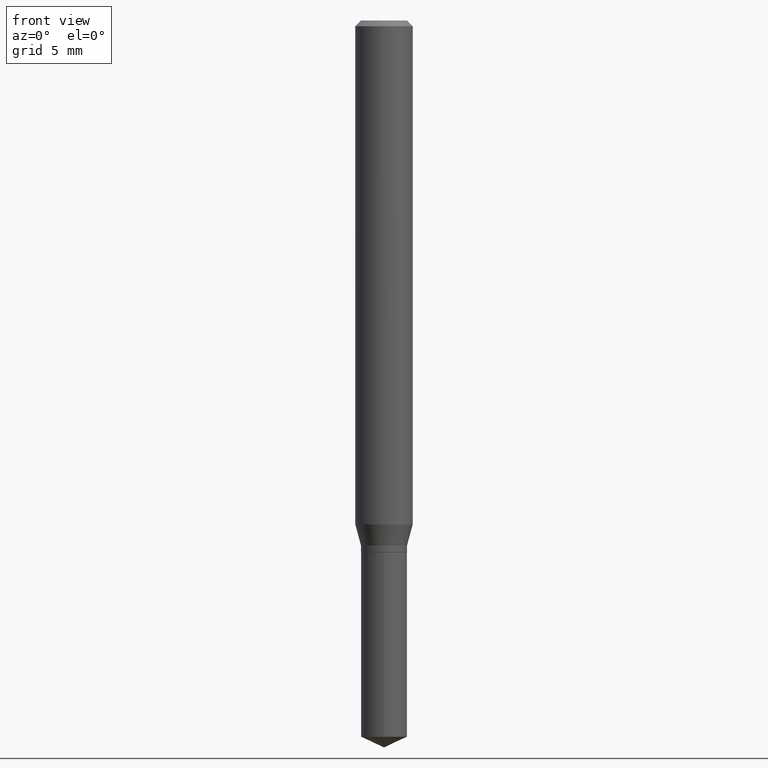
[diagram: clean part render]
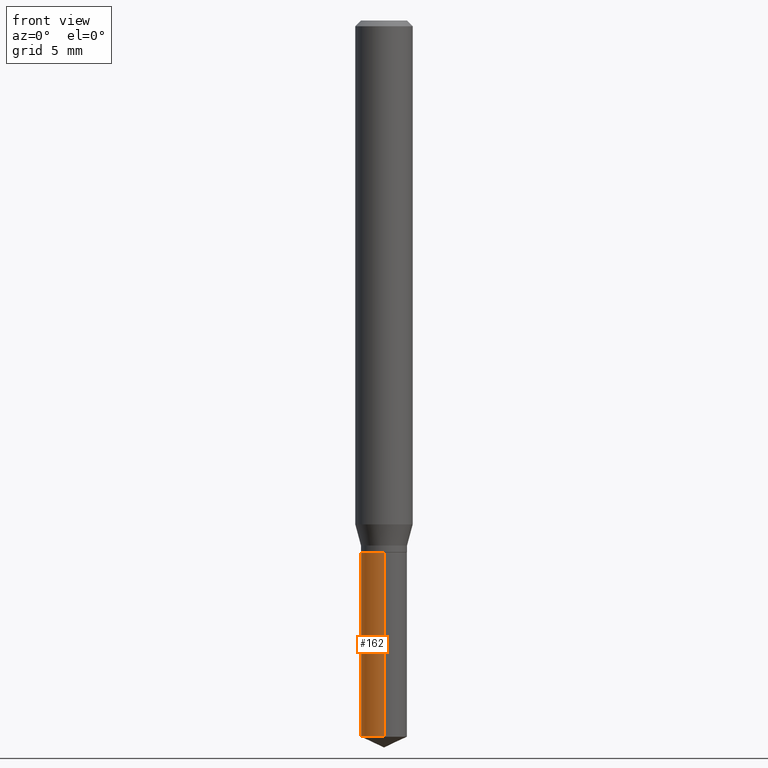
[diagram: same view with one face highlighted and labeled with its STEP entity id]
A machine part, front view. The second image highlights one B-rep face of the part: STEP entity #162.
In plain terms, the highlighted cylindrical surface (edge-blend (fillet) strip) has radius 1.2052 mm, axis along (-0, 0, 1).
Its self-contained STEP definition (entity closure, byte-faithful):
#1 = CARTESIAN_POINT ( 'NONE',  ( 3.371525281181942053E-16, 0.04744999999999616885, -1.094500000000000028 ) ) ;
#7 = VERTEX_POINT ( 'NONE', #358 ) ;
#22 = VERTEX_POINT ( 'NONE', #277 ) ;
#29 = DIRECTION ( 'NONE',  ( -6.982962677686266711E-15, -1.000000000000000000, 2.878659635051911177E-15 ) ) ;
#46 = VERTEX_POINT ( 'NONE', #309 ) ;
#55 = CIRCLE ( 'NONE', #366, 0.04744999999999999218 ) ;
#60 = EDGE_CURVE ( 'NONE', #7, #223, #55, .T. ) ;
#82 = DIRECTION ( 'NONE',  ( -6.982962677686266711E-15, -1.000000000000000000, 5.757319270103822354E-15 ) ) ;
#90 = CARTESIAN_POINT ( 'NONE',  ( 2.676565608369631794E-29, -3.821426325363822773E-15, -1.094499999999999806 ) ) ;
#95 = LINE ( 'NONE', #138, #307 ) ;
#128 = EDGE_CURVE ( 'NONE', #223, #22, #95, .T. ) ;
#133 = DIRECTION ( 'NONE',  ( -6.982962677686266711E-15, -1.000000000000000000, 2.878659635051911177E-15 ) ) ;
#135 = AXIS2_PLACEMENT_3D ( 'NONE', #90, #136, #133 ) ;
#136 = DIRECTION ( 'NONE',  ( -2.445458899330790108E-29, 3.491495526022433205E-15, 1.000000000000000000 ) ) ;
#138 = CARTESIAN_POINT ( 'NONE',  ( -3.313415790561865369E-16, -0.04745000000000382245, -1.094499999999999806 ) ) ;
#139 = CARTESIAN_POINT ( 'NONE',  ( -3.313415790561772185E-16, -0.04745000000000514084, -1.473973701620544752 ) ) ;
#152 = LINE ( 'NONE', #1, #262 ) ;
#162 = ADVANCED_FACE ( 'NONE', ( #445 ), #362, .T. ) ;
#173 = EDGE_CURVE ( 'NONE', #46, #22, #352, .T. ) ;
#223 = VERTEX_POINT ( 'NONE', #139 ) ;
#229 = ORIENTED_EDGE ( 'NONE', *, *, #173, .F. ) ;
#246 = DIRECTION ( 'NONE',  ( -2.445458899330790108E-29, 3.491495526022433205E-15, 1.000000000000000000 ) ) ;
#262 = VECTOR ( 'NONE', #455, 39.37007874015748143 ) ;
#277 = CARTESIAN_POINT ( 'NONE',  ( -3.313415790561865369E-16, -0.04745000000000382245, -1.094499999999999806 ) ) ;
#280 = AXIS2_PLACEMENT_3D ( 'NONE', #413, #246, #29 ) ;
#300 = ORIENTED_EDGE ( 'NONE', *, *, #128, .T. ) ;
#307 = VECTOR ( 'NONE', #449, 39.37007874015748143 ) ;
#309 = CARTESIAN_POINT ( 'NONE',  ( 3.371525281182035237E-16, 0.04744999999999616885, -1.094500000000000028 ) ) ;
#344 = ORIENTED_EDGE ( 'NONE', *, *, #60, .T. ) ;
#352 = CIRCLE ( 'NONE', #135, 0.04744999999999999218 ) ;
#354 = DIRECTION ( 'NONE',  ( -2.445458899330790108E-29, 3.491495526022433205E-15, 1.000000000000000000 ) ) ;
#355 = EDGE_LOOP ( 'NONE', ( #482, #344, #300, #229 ) ) ;
#358 = CARTESIAN_POINT ( 'NONE',  ( 3.371525281182034744E-16, 0.04744999999999483659, -1.473973701620545418 ) ) ;
#362 = CYLINDRICAL_SURFACE ( 'NONE', #280, 0.04744999999999999218 ) ;
#366 = AXIS2_PLACEMENT_3D ( 'NONE', #399, #354, #82 ) ;
#378 = EDGE_CURVE ( 'NONE', #7, #46, #152, .T. ) ;
#399 = CARTESIAN_POINT ( 'NONE',  ( 3.604552949059590582E-29, -5.146357056815127930E-15, -1.473973701620545196 ) ) ;
#413 = CARTESIAN_POINT ( 'NONE',  ( 2.676565608369631794E-29, -3.821426325363822773E-15, -1.094499999999999806 ) ) ;
#445 = FACE_OUTER_BOUND ( 'NONE', #355, .T. ) ;
#449 = DIRECTION ( 'NONE',  ( -2.445458899330790108E-29, 3.491495526022433599E-15, 1.000000000000000000 ) ) ;
#455 = DIRECTION ( 'NONE',  ( -2.445458899330790108E-29, 3.491495526022433599E-15, 1.000000000000000000 ) ) ;
#482 = ORIENTED_EDGE ( 'NONE', *, *, #378, .F. ) ;